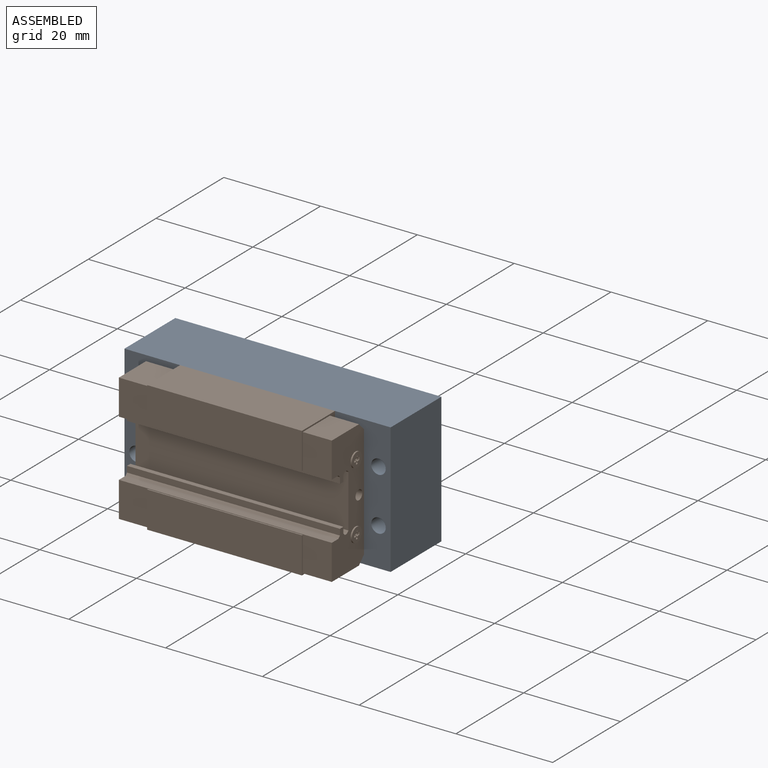
[diagram: assembled view]
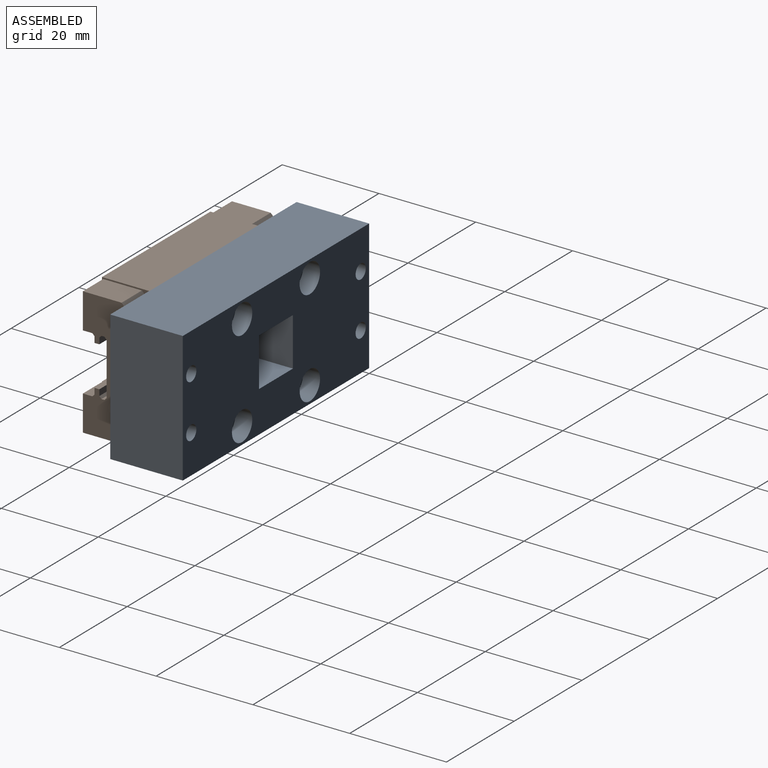
[diagram: assembled view, second angle]
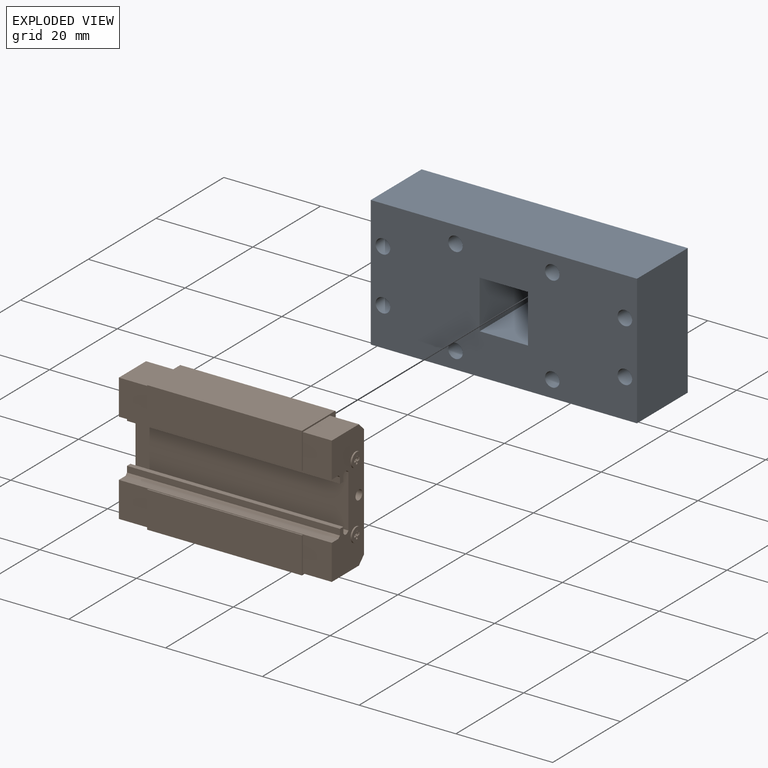
[diagram: exploded view]
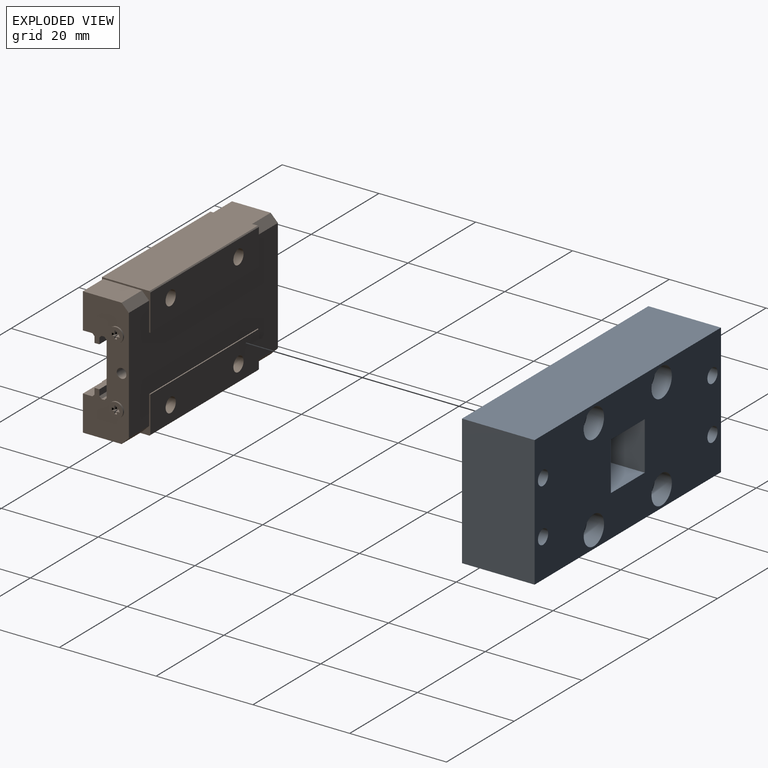
[diagram: exploded view, second angle]
FCSTD DOCUMENT  (FreeCAD 1.0R39109 (Git))
Label: CarriageLinearGuideAssembly
License: All rights reserved
LicenseURL: https://en.wikipedia.org/wiki/All_rights_reserved
objects: App::FeaturePython×3, App::Link×2, Assembly::JointGroup×1, Assembly::AssemblyObject×1
EXTERNAL_REF file=CrossCarriage.FCStd obj=Body
EXTERNAL_REF file=../LinearGuides/MGN12H.FCStd obj=Vagon_MGN_12

FEATURE [App::Link] Body
  LinkedObject = -> <external CrossCarriage.FCStd>#Body
FEATURE [App::FeaturePython] GroundedJoint  # Assembly grounded joint (typed FeaturePython)
  ObjectToGround = -> Body
FEATURE [App::Link] Vagon_MGN_021  label="Vagon MGN 021"
  LinkPlacement = pos=(165.94,287.047,-72.844) rot=(0.57735,-0.57735,0.57735;2.0944rad)
  LinkedObject = -> <external ../LinearGuides/MGN12H.FCStd>#Vagon_MGN_12
  Placement = pos=(165.94,287.047,-72.844) rot=(0.57735,-0.57735,0.57735;2.0944rad)
FEATURE [App::FeaturePython] Joint  label="Revolute"  # Assembly joint (typed FeaturePython)
  Activated = true
  AngleMax = 0
  AngleMin = 0
  Detach1 = false
  Detach2 = false
  Distance = 0
  Distance2 = 0
  EnableAngleMax = false
  EnableAngleMin = false
  EnableLengthMax = false
  EnableLengthMin = false
  JointType = 1 (Revolute)
  LengthMax = 0
  LengthMin = 0
  Offset2 = pos=(0,0,-0.25) rot=(0,0,1;0rad)
  Placement1 = pos=(17.5,-15,23.5) rot=(1,0,0;1.5708rad)
  Placement2 = pos=(96.344,148.44,302.047) rot=(0,1,0;3.14159rad)
  Reference1 = -> Assembly [Body.Edge23,Body.Edge23]
  Reference2 = -> Assembly [Vagon_MGN_021.Part__Feature006.Edge232,Vagon_MGN_021.Part__Feature006.Edge232]
FEATURE [App::FeaturePython] Joint001  label="Revolute001"  # Assembly joint (typed FeaturePython)
  Activated = true
  AngleMax = 0
  AngleMin = 0
  Detach1 = false
  Detach2 = false
  Distance = 0
  Distance2 = 0
  EnableAngleMax = false
  EnableAngleMin = false
  EnableLengthMax = false
  EnableLengthMin = false
  JointType = 1 (Revolute)
  LengthMax = 0
  LengthMin = 0
  Offset2 = pos=(0,0,-0.25) rot=(0,0,1;0rad)
  Placement1 = pos=(76.344,128.44,301.797) rot=(0,1,0;3.14159rad)
  Placement2 = pos=(37.5,-14.75,3.5) rot=(1,0,0;1.5708rad)
  Reference1 = -> Assembly [Vagon_MGN_021.Part__Feature006.Edge235,Vagon_MGN_021.Part__Feature006.Edge235]
  Reference2 = -> Assembly [Body.Edge34,Body.Edge34]
FEATURE [Assembly::JointGroup] Joints
  Group = -> [GroundedJoint,Joint,Joint001]
FEATURE [Assembly::AssemblyObject] Assembly
  Group = -> [Joints,Body,GroundedJoint,Vagon_MGN_021,Joint,Joint001]
  Origin = -> Origin
  Type = Assembly

RESOLVED EXTERNAL PARTS (link-assembly join: the EXTERNAL_REF files above that resolve inside this repo's crawl, each included once):
---- part CrossCarriage.FCStd = doc fcstd_fc4ef5810217 ----
FCSTD DOCUMENT  (FreeCAD 1.0R39109 (Git))
Label: CrossCarriage
License: All rights reserved
LicenseURL: https://en.wikipedia.org/wiki/All_rights_reserved
objects: Sketcher::SketchObject×4, PartDesign::Hole×2, PartDesign::Pad×1, PartDesign::Pocket×1, PartDesign::Body×1
note: 21 computed .brp shape members not serialized (recipe doc carries the construction recipe); baked Part::Feature solids carry a one-line shape summary decoded from their .brp

FEATURE [Sketcher::SketchObject] Sketch
  ArcFitTolerance = 1e-06
  AttachmentSupport = -> [XY_Plane]
  FullyConstrained = true
  MakeInternals = false
  MapMode = 5
  sketch-geometry (4):
    g0: LineSegment StartX=0 StartY=0 StartZ=0 EndX=0 EndY=-15 EndZ=0
    g1: LineSegment StartX=0 StartY=-15 StartZ=0 EndX=55 EndY=-15 EndZ=0
    g2: LineSegment StartX=55 StartY=-15 StartZ=0 EndX=55 EndY=0 EndZ=0
    g3: LineSegment StartX=55 StartY=0 StartZ=0 EndX=0 EndY=0 EndZ=0
  constraints (11):
    c: Coincident(g0,g1)
    c: Coincident(g1,g2)
    c: Coincident(g2,g3)
    c: Coincident(g3,g0)
    c: Vertical(g0)
    c: Vertical(g2)
    c: Horizontal(g1)
    c: Horizontal(g3)
    c: Distance(g0,g2) = 55
    c: Distance(g1,g3) = 15
    c: Coincident(g0,g-1)
FEATURE [PartDesign::Pad] Pad
  Direction = (0,0,1)
  Length = 27
  Length2 = 10
  Profile = -> Sketch
  ReferenceAxis = -> Sketch [N_Axis]
  Refine = true
  Suppressed = false
  Type = 0
FEATURE [Sketcher::SketchObject] Sketch001
  ArcFitTolerance = 1e-06
  AttachmentSupport = -> [Pad]
  ExternalGeometry = -> [Pad]
  FullyConstrained = true
  MakeInternals = false
  MapMode = 5
  Placement = pos=(0,0,0) rot=(0,0.707107,0.707107;3.14159rad)
  sketch-geometry (5):
    g0: LineSegment StartX=-32.5 StartY=8.5 StartZ=0 EndX=-22.5 EndY=8.5 EndZ=0
    g1: LineSegment StartX=-22.5 StartY=8.5 StartZ=0 EndX=-22.5 EndY=18.5 EndZ=0
    g2: LineSegment StartX=-22.5 StartY=18.5 StartZ=0 EndX=-32.5 EndY=18.5 EndZ=0
    g3: LineSegment StartX=-32.5 StartY=18.5 StartZ=0 EndX=-32.5 EndY=8.5 EndZ=0
    g4: GeomPoint [constr] X=-27.5 Y=13.5 Z=0
  constraints (12):
    c: Coincident(g0,g1)
    c: Coincident(g1,g2)
    c: Coincident(g2,g3)
    c: Coincident(g3,g0)
    c: Horizontal(g0)
    c: Horizontal(g2)
    c: Vertical(g1)
    c: Vertical(g3)
    c: Symmetric(g2,g0,g4)
    c: Distance(g1,g3) = 10
    c: Distance(g0,g2) = 10
    c: Symmetric(g-3,g-1,g4)
FEATURE [PartDesign::Pocket] Pocket
  BaseFeature = -> Pad
  Direction = (0,-1,2e-16)
  Length = 5
  Length2 = 5
  Profile = -> Sketch001
  ReferenceAxis = -> Sketch001 [N_Axis]
  Refine = true
  Suppressed = false
  Type = 1
FEATURE [Sketcher::SketchObject] Sketch002
  ArcFitTolerance = 1e-06
  AttachmentSupport = -> [Pocket]
  ExternalGeometry = -> [Pocket]
  FullyConstrained = true
  MakeInternals = false
  MapMode = 5
  Placement = pos=(0,0,0) rot=(0,0.707107,0.707107;3.14159rad)
  sketch-geometry (14):
    g0: LineSegment [constr] StartX=-77.5 StartY=10.5 StartZ=0 EndX=22.5 EndY=10.5 EndZ=0
    g1: LineSegment [constr] StartX=22.5 StartY=10.5 StartZ=0 EndX=22.5 EndY=16.5 EndZ=0
    g2: LineSegment [constr] StartX=22.5 StartY=16.5 StartZ=0 EndX=-77.5 EndY=16.5 EndZ=0
    g3: LineSegment [constr] StartX=-77.5 StartY=16.5 StartZ=0 EndX=-77.5 EndY=10.5 EndZ=0
    g4: GeomPoint [constr] X=-27.5 Y=13.5 Z=0
    g5: Circle CenterX=-52.5 CenterY=19 CenterZ=0 NormalX=0 NormalY=0 NormalZ=1 AngleXU=0 Radius=1.5
    g6: Circle CenterX=-52.5 CenterY=8 CenterZ=0 NormalX=0 NormalY=0 NormalZ=1 AngleXU=0 Radius=1.5
    g7: Circle CenterX=-2.5 CenterY=8 CenterZ=0 NormalX=0 NormalY=0 NormalZ=1 AngleXU=0 Radius=1.5
    g8: Circle CenterX=-2.5 CenterY=19 CenterZ=0 NormalX=0 NormalY=0 NormalZ=1 AngleXU=0 Radius=1.5
    g9: LineSegment [constr] StartX=-2.5 StartY=8 StartZ=0 EndX=-2.5 EndY=19 EndZ=0
    g10: LineSegment [constr] StartX=-2.5 StartY=19 StartZ=0 EndX=-52.5 EndY=19 EndZ=0
    g11: LineSegment [constr] StartX=-52.5 StartY=19 StartZ=0 EndX=-52.5 EndY=8 EndZ=0
    g12: LineSegment [constr] StartX=-52.5 StartY=8 StartZ=0 EndX=-2.5 EndY=8 EndZ=0
    g13: GeomPoint [constr] X=-27.5 Y=13.5 Z=0
  constraints (32):
    c: Coincident(g0,g1)
    c: Coincident(g1,g2)
    c: Coincident(g2,g3)
    c: Coincident(g3,g0)
    c: Horizontal(g0)
    c: Horizontal(g2)
    c: Vertical(g1)
    c: Vertical(g3)
    c: Symmetric(g2,g0,g4)
    c: Distance(g1,g3) = 100
    c: Distance(g0,g2) = 6
    c: Symmetric(g-3,g-1,g4)
    c: Diameter(g5) = 3
    c: Coincident(g9,g10)
    c: Coincident(g10,g11)
    c: Coincident(g11,g12)
    c: Coincident(g12,g9)
    c: Vertical(g9)
    c: Vertical(g11)
    c: Horizontal(g10)
    c: Horizontal(g12)
    c: Symmetric(g11,g9,g13)
    c: Coincident(g13,g4)
    c: Coincident(g10,g5)
    c: Coincident(g8,g9)
    c: Coincident(g9,g7)
    c: Coincident(g6,g11)
    c: Equal(g5,g8)
    c: Equal(g5,g7)
    c: Equal(g5,g6)
    c: Distance(g-4,g11) = 2.5
    c: Distance(g2,g10) = 2.5
FEATURE [PartDesign::Hole] Hole
  BaseFeature = -> Pocket
  CustomThreadClearance = 0
  Depth = 127.42
  DepthType = 1
  Diameter = 3
  DrillForDepth = false
  DrillPoint = 1
  DrillPointAngle = 118
  HoleCutCountersinkAngle = 90
  HoleCutCustomValues = false
  HoleCutDepth = 0
  HoleCutDiameter = 6.1
  HoleCutType = 0
  ModelThread = false
  Profile = -> Sketch002
  Refine = true
  Suppressed = false
  Tapered = false
  TaperedAngle = 90
  ThreadClass = 0
  ThreadDepth = 127.42
  ThreadDepthType = 0
  ThreadDirection = 0
  ThreadFit = 0
  ThreadSize = 0
  ThreadType = 0
  Threaded = false
  UseCustomThreadClearance = false
FEATURE [Sketcher::SketchObject] Sketch003
  ArcFitTolerance = 1e-06
  AttachmentSupport = -> [Hole]
  ExternalGeometry = -> [Hole]
  FullyConstrained = true
  MakeInternals = false
  MapMode = 5
  Placement = pos=(0,0,0) rot=(0,0.707107,0.707107;3.14159rad)
  sketch-geometry (9):
    g0: LineSegment [constr] StartX=-37.5 StartY=3.5 StartZ=0 EndX=-17.5 EndY=3.5 EndZ=0
    g1: LineSegment [constr] StartX=-17.5 StartY=3.5 StartZ=0 EndX=-17.5 EndY=23.5 EndZ=0
    g2: LineSegment [constr] StartX=-17.5 StartY=23.5 StartZ=0 EndX=-37.5 EndY=23.5 EndZ=0
    g3: LineSegment [constr] StartX=-37.5 StartY=23.5 StartZ=0 EndX=-37.5 EndY=3.5 EndZ=0
    g4: GeomPoint [constr] X=-27.5 Y=13.5 Z=0
    g5: Circle CenterX=-37.5 CenterY=23.5 CenterZ=0 NormalX=0 NormalY=0 NormalZ=1 AngleXU=0 Radius=1.5
    g6: Circle CenterX=-17.5 CenterY=23.5 CenterZ=0 NormalX=0 NormalY=0 NormalZ=1 AngleXU=0 Radius=1.5
    g7: Circle CenterX=-17.5 CenterY=3.5 CenterZ=0 NormalX=0 NormalY=0 NormalZ=1 AngleXU=0 Radius=1.5
    g8: Circle CenterX=-37.5 CenterY=3.5 CenterZ=0 NormalX=0 NormalY=0 NormalZ=1 AngleXU=0 Radius=1.5
  constraints (20):
    c: Coincident(g0,g1)
    c: Coincident(g1,g2)
    c: Coincident(g2,g3)
    c: Coincident(g3,g0)
    c: Horizontal(g0)
    c: Horizontal(g2)
    c: Vertical(g1)
    c: Vertical(g3)
    c: Symmetric(g2,g0,g4)
    c: Distance(g1,g3) = 20
    c: Distance(g0,g2) = 20
    c: Symmetric(g-3,g-1,g4)
    c: Diameter(g5) = 3
    c: Coincident(g5,g2)
    c: Coincident(g6,g1)
    c: Coincident(g7,g0)
    c: Coincident(g8,g0)
    c: Equal(g5,g6)
    c: Equal(g5,g7)
    c: Equal(g5,g8)
FEATURE [PartDesign::Hole] Hole001
  BaseFeature = -> Hole
  CustomThreadClearance = 0
  Depth = 127.42
  DepthType = 1
  Diameter = 3
  DrillForDepth = false
  DrillPoint = 1
  DrillPointAngle = 118
  HoleCutCountersinkAngle = 90
  HoleCutCustomValues = false
  HoleCutDepth = 3.5
  HoleCutDiameter = 6
  HoleCutType = 1
  ModelThread = false
  Profile = -> Sketch003
  Refine = true
  Suppressed = false
  Tapered = false
  TaperedAngle = 90
  ThreadClass = 0
  ThreadDepth = 127.42
  ThreadDepthType = 0
  ThreadDirection = 0
  ThreadFit = 0
  ThreadSize = 0
  ThreadType = 0
  Threaded = false
  UseCustomThreadClearance = false
FEATURE [PartDesign::Body] Body
  AllowCompound = false
  Group = -> [Sketch,Pad,Sketch001,Pocket,Sketch002,Hole,Sketch003,Hole001]
  Origin = -> Origin
  Tip = -> Hole001
